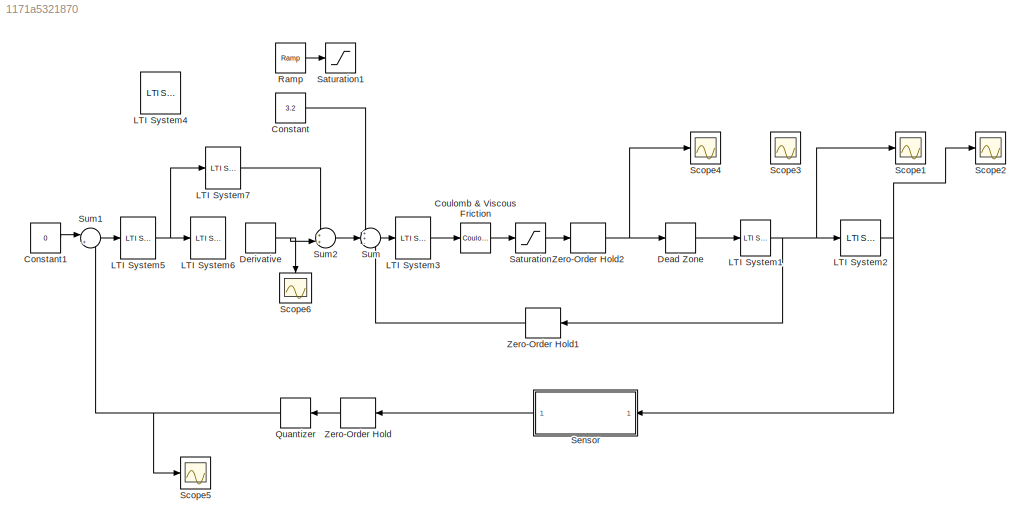
MODEL slx_1171a5321870
KIND model
CONFIG AbsTol = auto
CONFIG FixedStep = .01
CONFIG MaxStep = auto
CONFIG MinStep = auto
CONFIG RelTol = 1e-3
CONFIG SampleTimeConstraint = Unconstrained
CONFIG Solver = ode3
CONFIG SolverMode = Auto
CONFIG SolverName = ode3
CONFIG StartTime = 0.0
CONFIG StopTime = 20
BLOCK [Constant] Constant
  Value = 3.2
BLOCK [Constant] Constant1
  Value = 0
BLOCK [Reference] Coulomb & Viscous Friction  REF=simulink/Discontinuities/Coulomb &
Viscous Friction
  Ports = [1, 1]
  SourceBlock = simulink/Discontinuities/Coulomb &\nViscous Friction
  SourceType = Coulombic and Viscous Friction
  gain = 1
  offset = 4.5
BLOCK [DeadZone] Dead Zone
  LowerValue = -4.5
  UpperValue = 4.5
BLOCK [Derivative] Derivative
BLOCK [Reference] LTI System1  REF=cstblocks/LTI System
  IC = []
  Ports = [1, 1]
  SourceBlock = cstblocks/LTI System
  SourceType = LTI Block
  sys = Xm
BLOCK [Reference] LTI System2  REF=cstblocks/LTI System
  IC = []
  Ports = [1, 1]
  SourceBlock = cstblocks/LTI System
  SourceType = LTI Block
  sys = Wm
BLOCK [Reference] LTI System3  REF=cstblocks/LTI System
  IC = []
  Ports = [1, 1]
  SourceBlock = cstblocks/LTI System
  SourceType = LTI Block
  sys = C1
BLOCK [Reference] LTI System4  REF=cstblocks/LTI System
  IC = []
  Ports = [1, 1]
  SourceBlock = cstblocks/LTI System
  SourceType = LTI Block
  sys = dC2
BLOCK [Reference] LTI System5  REF=cstblocks/LTI System
  IC = []
  Ports = [1, 1]
  SourceBlock = cstblocks/LTI System
  SourceType = LTI Block
  sys = k
BLOCK [Reference] LTI System6  REF=cstblocks/LTI System
  IC = []
  Ports = [1, 1]
  SourceBlock = cstblocks/LTI System
  SourceType = LTI Block
  sys = td
BLOCK [Reference] LTI System7  REF=cstblocks/LTI System
  IC = []
  Ports = [1, 1]
  SourceBlock = cstblocks/LTI System
  SourceType = LTI Block
  sys = tp
BLOCK [Quantizer] Quantizer
  LinearizeAsGain = off
  QuantizationInterval = 0.001
BLOCK [Reference] Ramp  REF=simulink/Sources/Ramp
  Ports = [0, 1]
  SourceBlock = simulink/Sources/Ramp
  SourceType = Ramp
  VectorParams1D = on
  X0 = 0
  slope = .5
  start = 0
BLOCK [Saturate] Saturation
  InputPortMap = u0
  LowerLimit = -12.5
  Ports = [1, 1]
  UpperLimit = 12.5
BLOCK [Saturate] Saturation1
  InputPortMap = u0
  LowerLimit = 0
  Ports = [1, 1]
  UpperLimit = 3.2
BLOCK [Scope] Scope1
  Floating = off
  LimitDataPoints = off
  NumInputPorts = 1
  Ports = [1]
  SaveName = ScopeData1
BLOCK [Scope] Scope2
  Floating = off
  LimitDataPoints = off
  NumInputPorts = 1
  Ports = [1]
  SaveName = ScopeData2
  TimeRange = 40
  YMax = 0.015
  YMin = -0.085
  ZoomMode = yonly
BLOCK [Scope] Scope3
  Floating = off
  LimitDataPoints = off
  NumInputPorts = 1
  Ports = [1]
  ZoomMode = xonly
BLOCK [Scope] Scope4
  Floating = off
  LimitDataPoints = off
  NumInputPorts = 1
  Ports = [1]
  SaveName = ScopeData3
  ZoomMode = xonly
BLOCK [Scope] Scope5
  Floating = off
  LimitDataPoints = off
  NumInputPorts = 1
  Ports = [1]
  SaveName = ScopeData4
  YMax = 0.015
  YMin = -0.085
  ZoomMode = xonly
BLOCK [Scope] Scope6
  Floating = off
  LimitDataPoints = off
  NumInputPorts = 1
  Ports = [1]
  SaveName = ScopeData5
  YMax = 0.015
  YMin = -0.085
  ZoomMode = xonly
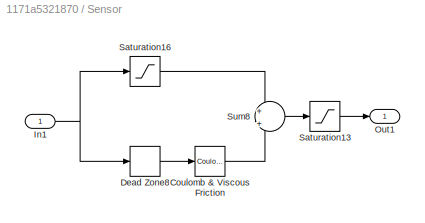
BLOCK [SubSystem] Sensor
  Ports = [1, 1]
  RequestExecContextInheritance = off
BLOCK [Reference] Sensor/Coulomb & Viscous Friction  REF=simulink/Discontinuities/Coulomb &
Viscous Friction
  Ports = [1, 1]
  SourceBlock = simulink/Discontinuities/Coulomb &\nViscous Friction
  SourceType = Coulombic and Viscous Friction
  gain = 1
  offset = [0.165]
BLOCK [DeadZone] Sensor/Dead Zone8
  LowerValue = -0.3225
  UpperValue = 0.337
BLOCK [Inport] Sensor/In1
  IconDisplay = Port number
BLOCK [Outport] Sensor/Out1
  IconDisplay = Port number
BLOCK [Saturate] Sensor/Saturation13
  InputPortMap = u0
  LowerLimit = -0.68
  Ports = [1, 1]
  UpperLimit = 0.664
BLOCK [Saturate] Sensor/Saturation16
  InputPortMap = u0
  LowerLimit = -0.1787
  Ports = [1, 1]
  UpperLimit = .1627
BLOCK [Sum] Sensor/Sum8
  IconShape = round
  InputSameDT = off
  Inputs = +|+
  OutDataTypeStr = Inherit: Inherit via internal rule
  Ports = [2, 1]
  SaturateOnIntegerOverflow = off
BLOCK [Sum] Sum
  IconShape = round
  InputSameDT = off
  Inputs = ++-
  OutDataTypeStr = Inherit: Inherit via internal rule
  Ports = [3, 1]
  SaturateOnIntegerOverflow = off
BLOCK [Sum] Sum1
  IconShape = round
  InputSameDT = off
  Inputs = |++
  OutDataTypeStr = Inherit: Inherit via internal rule
  Ports = [2, 1]
  SaturateOnIntegerOverflow = off
BLOCK [Sum] Sum2
  IconShape = round
  InputSameDT = off
  Inputs = ++|
  OutDataTypeStr = Inherit: Inherit via internal rule
  Ports = [2, 1]
  SaturateOnIntegerOverflow = off
BLOCK [ZeroOrderHold] Zero-Order Hold
  SampleTime = .01
BLOCK [ZeroOrderHold] Zero-Order Hold1
  SampleTime = .01
BLOCK [ZeroOrderHold] Zero-Order Hold2
  SampleTime = .01
LINE Constant1:1 -> Sum1:1
LINE Constant:1 -> Sum:1
LINE Coulomb & Viscous Friction:1 -> Saturation:1
LINE Dead Zone:1 -> LTI System1:1
NET Derivative:1 -> Scope6:1, Sum2:2
NET LTI System1:1 -> LTI System2:1, Scope1:1, Zero-Order Hold1:1
NET LTI System2:1 -> Scope2:1, Sensor:1
LINE LTI System3:1 -> Coulomb & Viscous Friction:1
NET LTI System5:1 -> LTI System6:1, LTI System7:1
LINE LTI System7:1 -> Sum2:1
NET Quantizer:1 -> Scope5:1, Sum1:2
LINE Ramp:1 -> Saturation1:1
LINE Saturation:1 -> Zero-Order Hold2:1
LINE Sensor/Coulomb & Viscous Friction:1 -> Sensor/Sum8:2
LINE Sensor/Dead Zone8:1 -> Sensor/Coulomb & Viscous Friction:1
NET Sensor/In1:1 -> Sensor/Dead Zone8:1, Sensor/Saturation16:1
LINE Sensor/Saturation13:1 -> Sensor/Out1:1
LINE Sensor/Saturation16:1 -> Sensor/Sum8:1
LINE Sensor/Sum8:1 -> Sensor/Saturation13:1
LINE Sensor:1 -> Zero-Order Hold:1
LINE Sum1:1 -> LTI System5:1
LINE Sum2:1 -> Sum:2
LINE Sum:1 -> LTI System3:1
LINE Zero-Order Hold1:1 -> Sum:3
NET Zero-Order Hold2:1 -> Dead Zone:1, Scope4:1
LINE Zero-Order Hold:1 -> Quantizer:1
note: NET lines group one-source signal fan-out (src -> all destinations, sorted); 1:1 wires keep LINE
